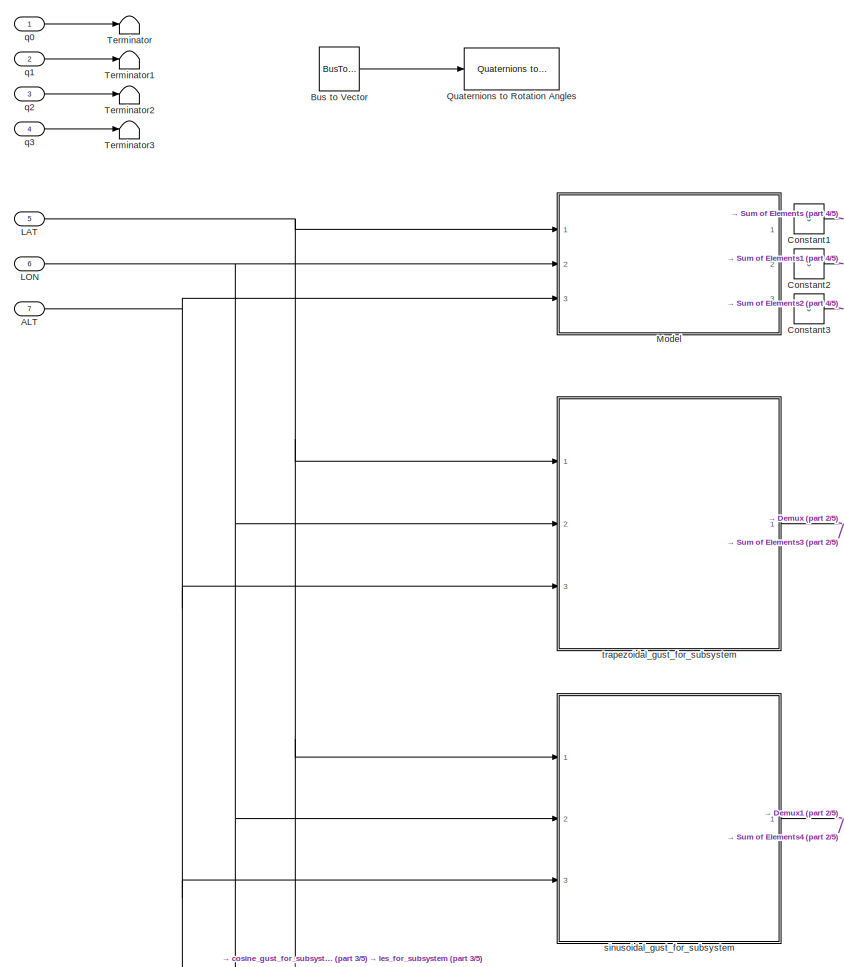
[diagram: root canvas - part 1/5, top left region]
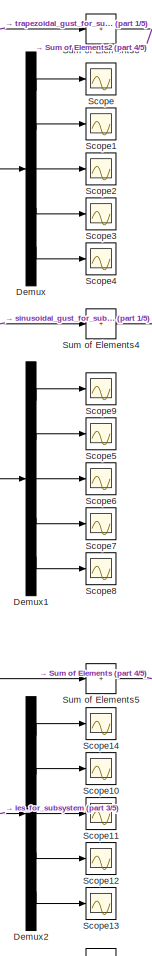
[diagram: root canvas - part 2/5, top center region]
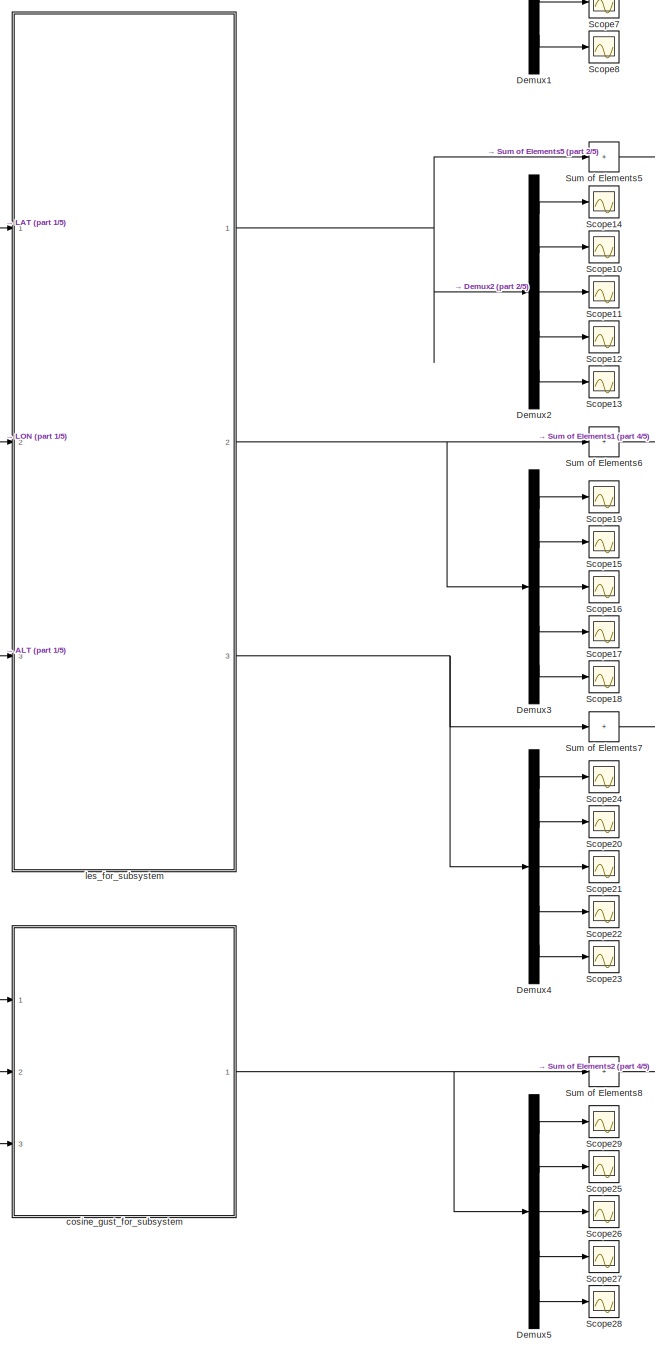
[diagram: root canvas - part 3/5, central region]
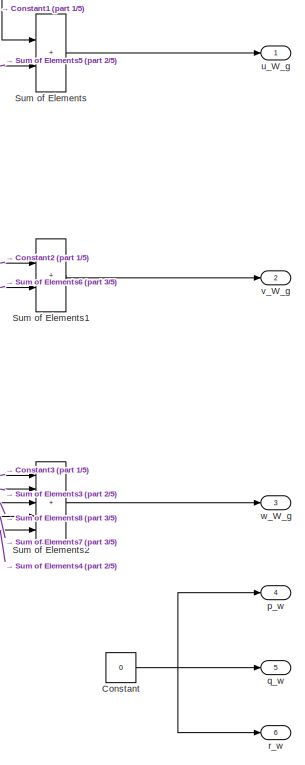
[diagram: root canvas - part 4/5, bottom right region]
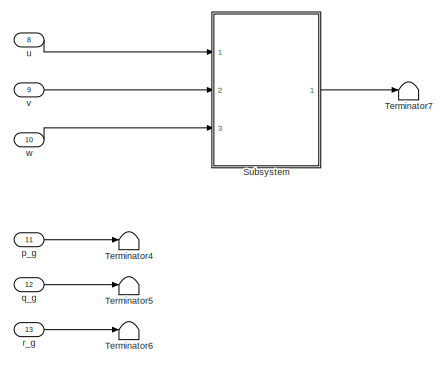
[diagram: root canvas - part 5/5, bottom left region]
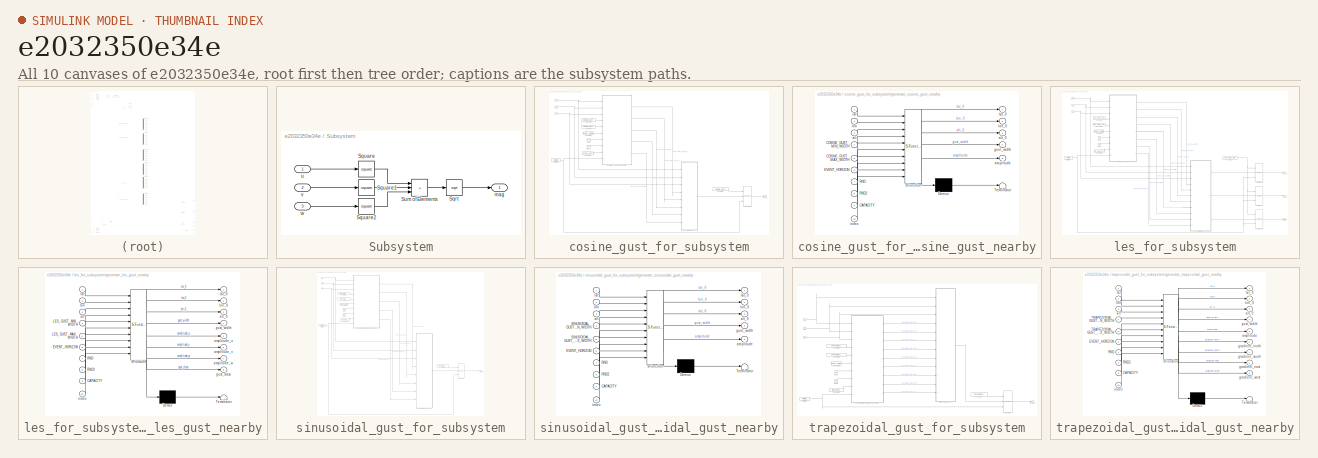
[diagram: thumbnail index - all 10 canvases of the model, root first then tree order]
MODEL slx_e2032350e34e
KIND model
BLOCK [Inport] ALT
  OutDataTypeStr = double
  Port = 7
BLOCK [BusToVector] Bus to Vector
  Commented = on
BLOCK [Constant] Constant
  Value = 0
BLOCK [Constant] Constant1
  Value = 0
BLOCK [Constant] Constant2
  Value = 0
BLOCK [Constant] Constant3
  Value = 0
BLOCK [Demux] Demux
  Outputs = 5
  Ports = [1, 5]
BLOCK [Demux] Demux1
  Outputs = 5
  Ports = [1, 5]
BLOCK [Demux] Demux2
  Outputs = 5
  Ports = [1, 5]
BLOCK [Demux] Demux3
  Outputs = 5
  Ports = [1, 5]
BLOCK [Demux] Demux4
  Outputs = 5
  Ports = [1, 5]
BLOCK [Demux] Demux5
  Outputs = 5
  Ports = [1, 5]
BLOCK [Inport] LAT
  OutDataTypeStr = double
  Port = 5
BLOCK [Inport] LON
  OutDataTypeStr = double
  Port = 6
BLOCK [ModelReference] Model
  Commented = on
  ModelNameDialog = model_static_wind_field.slx
  ModelReferenceVersion = 1.34
  Ports = [3, 3]
BLOCK [Reference] Quaternions to Rotation Angles  REF=sharedtransform/Quaternions to Rotation Angles
  AttributesFormatString = Rotation Order: %<rotationOrder>
  Commented = on
  Ports = [1, 1]
  SourceBlock = sharedtransform/Quaternions to Rotation Angles
  SourceProductBaseCode = AE,PW,MT,UV,VE,VP
  SourceType = Quat2Ang
BLOCK [Scope] Scope
  Floating = off
  NumInputPorts = 1
  Ports = [1]
  ScopeSpecificationString = Simulink.scopes.TimeScopeBlockCfg('CurrentConfiguration', extmgr.ConfigurationSet(extmgr.Configuration('Core','General UI',true),extmgr.Configuration('Core','Source UI',true),extmgr.Configuration('Sources','WiredSimulink',true),extmgr.Configuration('Visuals','Time Domain',true,'SerializedDisplays',{struct('MinYLimReal','-1.00000','MaxYLimReal','1.00000','YLabelReal','','MinYLimMag','0.00000','MaxY...<+1327ch>
BLOCK [Scope] Scope1
  Floating = off
  NumInputPorts = 1
  Ports = [1]
  ScopeSpecificationString = Simulink.scopes.TimeScopeBlockCfg('CurrentConfiguration', extmgr.ConfigurationSet(extmgr.Configuration('Core','General UI',true),extmgr.Configuration('Core','Source UI',true),extmgr.Configuration('Sources','WiredSimulink',true,'DataLoggingVariableName','ScopeData1'),extmgr.Configuration('Visuals','Time Domain',true,'SerializedDisplays',{struct('MinYLimReal','-1.00000','MaxYLimReal','1.00000','YLab...<+1366ch>
BLOCK [Scope] Scope10
  Floating = off
  NumInputPorts = 1
  Ports = [1]
  ScopeSpecificationString = Simulink.scopes.TimeScopeBlockCfg('CurrentConfiguration', extmgr.ConfigurationSet(extmgr.Configuration('Core','General UI',true),extmgr.Configuration('Core','Source UI',true),extmgr.Configuration('Sources','WiredSimulink',true,'DataLoggingVariableName','ScopeData1'),extmgr.Configuration('Visuals','Time Domain',true),extmgr.Configuration('Tools','Plot Navigation',true),extmgr.Configuration('Tools',...<+40ch>
BLOCK [Scope] Scope11
  Floating = off
  NumInputPorts = 1
  Ports = [1]
  ScopeSpecificationString = Simulink.scopes.TimeScopeBlockCfg('CurrentConfiguration', extmgr.ConfigurationSet(extmgr.Configuration('Core','General UI',true),extmgr.Configuration('Core','Source UI',true),extmgr.Configuration('Sources','WiredSimulink',true,'DataLoggingVariableName','ScopeData2'),extmgr.Configuration('Visuals','Time Domain',true),extmgr.Configuration('Tools','Plot Navigation',true),extmgr.Configuration('Tools',...<+40ch>
BLOCK [Scope] Scope12
  Floating = off
  NumInputPorts = 1
  Ports = [1]
  ScopeSpecificationString = Simulink.scopes.TimeScopeBlockCfg('CurrentConfiguration', extmgr.ConfigurationSet(extmgr.Configuration('Core','General UI',true),extmgr.Configuration('Core','Source UI',true),extmgr.Configuration('Sources','WiredSimulink',true,'DataLoggingVariableName','ScopeData3'),extmgr.Configuration('Visuals','Time Domain',true),extmgr.Configuration('Tools','Plot Navigation',true),extmgr.Configuration('Tools',...<+40ch>
BLOCK [Scope] Scope13
  Floating = off
  NumInputPorts = 1
  Ports = [1]
  ScopeSpecificationString = Simulink.scopes.TimeScopeBlockCfg('CurrentConfiguration', extmgr.ConfigurationSet(extmgr.Configuration('Core','General UI',true),extmgr.Configuration('Core','Source UI',true),extmgr.Configuration('Sources','WiredSimulink',true,'DataLoggingVariableName','ScopeData4'),extmgr.Configuration('Visuals','Time Domain',true),extmgr.Configuration('Tools','Plot Navigation',true),extmgr.Configuration('Tools',...<+40ch>
BLOCK [Scope] Scope14
  Floating = off
  NumInputPorts = 1
  Ports = [1]
  ScopeSpecificationString = Simulink.scopes.TimeScopeBlockCfg('CurrentConfiguration', extmgr.ConfigurationSet(extmgr.Configuration('Core','General UI',true),extmgr.Configuration('Core','Source UI',true),extmgr.Configuration('Sources','WiredSimulink',true,'DataLoggingVariableName','ScopeData5'),extmgr.Configuration('Visuals','Time Domain',true),extmgr.Configuration('Tools','Plot Navigation',true),extmgr.Configuration('Tools',...<+40ch>
BLOCK [Scope] Scope15
  Floating = off
  NumInputPorts = 1
  Ports = [1]
  ScopeSpecificationString = Simulink.scopes.TimeScopeBlockCfg('CurrentConfiguration', extmgr.ConfigurationSet(extmgr.Configuration('Core','General UI',true),extmgr.Configuration('Core','Source UI',true),extmgr.Configuration('Sources','WiredSimulink',true,'DataLoggingVariableName','ScopeData6'),extmgr.Configuration('Visuals','Time Domain',true),extmgr.Configuration('Tools','Plot Navigation',true),extmgr.Configuration('Tools',...<+40ch>
BLOCK [Scope] Scope16
  Floating = off
  NumInputPorts = 1
  Ports = [1]
  ScopeSpecificationString = Simulink.scopes.TimeScopeBlockCfg('CurrentConfiguration', extmgr.ConfigurationSet(extmgr.Configuration('Core','General UI',true),extmgr.Configuration('Core','Source UI',true),extmgr.Configuration('Sources','WiredSimulink',true,'DataLoggingVariableName','ScopeData7'),extmgr.Configuration('Visuals','Time Domain',true),extmgr.Configuration('Tools','Plot Navigation',true),extmgr.Configuration('Tools',...<+40ch>
BLOCK [Scope] Scope17
  Floating = off
  NumInputPorts = 1
  Ports = [1]
  ScopeSpecificationString = Simulink.scopes.TimeScopeBlockCfg('CurrentConfiguration', extmgr.ConfigurationSet(extmgr.Configuration('Core','General UI',true),extmgr.Configuration('Core','Source UI',true),extmgr.Configuration('Sources','WiredSimulink',true,'DataLoggingVariableName','ScopeData8'),extmgr.Configuration('Visuals','Time Domain',true),extmgr.Configuration('Tools','Plot Navigation',true),extmgr.Configuration('Tools',...<+40ch>
BLOCK [Scope] Scope18
  Floating = off
  NumInputPorts = 1
  Ports = [1]
  ScopeSpecificationString = Simulink.scopes.TimeScopeBlockCfg('CurrentConfiguration', extmgr.ConfigurationSet(extmgr.Configuration('Core','General UI',true),extmgr.Configuration('Core','Source UI',true),extmgr.Configuration('Sources','WiredSimulink',true,'DataLoggingVariableName','ScopeData9'),extmgr.Configuration('Visuals','Time Domain',true),extmgr.Configuration('Tools','Plot Navigation',true),extmgr.Configuration('Tools',...<+40ch>
BLOCK [Scope] Scope19
  Floating = off
  NumInputPorts = 1
  Ports = [1]
  ScopeSpecificationString = Simulink.scopes.TimeScopeBlockCfg('CurrentConfiguration', extmgr.ConfigurationSet(extmgr.Configuration('Core','General UI',true),extmgr.Configuration('Core','Source UI',true),extmgr.Configuration('Sources','WiredSimulink',true,'DataLoggingVariableName','ScopeData10'),extmgr.Configuration('Visuals','Time Domain',true),extmgr.Configuration('Tools','Plot Navigation',true),extmgr.Configuration('Tools'...<+41ch>
BLOCK [Scope] Scope2
  Floating = off
  NumInputPorts = 1
  Ports = [1]
  ScopeSpecificationString = Simulink.scopes.TimeScopeBlockCfg('CurrentConfiguration', extmgr.ConfigurationSet(extmgr.Configuration('Core','General UI',true),extmgr.Configuration('Core','Source UI',true),extmgr.Configuration('Sources','WiredSimulink',true,'DataLoggingVariableName','ScopeData2'),extmgr.Configuration('Visuals','Time Domain',true,'SerializedDisplays',{struct('MinYLimReal','-1.00000','MaxYLimReal','1.00000','YLab...<+1366ch>
BLOCK [Scope] Scope20
  Floating = off
  NumInputPorts = 1
  Ports = [1]
  ScopeSpecificationString = Simulink.scopes.TimeScopeBlockCfg('CurrentConfiguration', extmgr.ConfigurationSet(extmgr.Configuration('Core','General UI',true),extmgr.Configuration('Core','Source UI',true),extmgr.Configuration('Sources','WiredSimulink',true,'DataLoggingVariableName','ScopeData11'),extmgr.Configuration('Visuals','Time Domain',true),extmgr.Configuration('Tools','Plot Navigation',true),extmgr.Configuration('Tools'...<+41ch>
BLOCK [Scope] Scope21
  Floating = off
  NumInputPorts = 1
  Ports = [1]
  ScopeSpecificationString = Simulink.scopes.TimeScopeBlockCfg('CurrentConfiguration', extmgr.ConfigurationSet(extmgr.Configuration('Core','General UI',true),extmgr.Configuration('Core','Source UI',true),extmgr.Configuration('Sources','WiredSimulink',true,'DataLoggingVariableName','ScopeData12'),extmgr.Configuration('Visuals','Time Domain',true),extmgr.Configuration('Tools','Plot Navigation',true),extmgr.Configuration('Tools'...<+41ch>
BLOCK [Scope] Scope22
  Floating = off
  NumInputPorts = 1
  Ports = [1]
  ScopeSpecificationString = Simulink.scopes.TimeScopeBlockCfg('CurrentConfiguration', extmgr.ConfigurationSet(extmgr.Configuration('Core','General UI',true),extmgr.Configuration('Core','Source UI',true),extmgr.Configuration('Sources','WiredSimulink',true,'DataLoggingVariableName','ScopeData13'),extmgr.Configuration('Visuals','Time Domain',true),extmgr.Configuration('Tools','Plot Navigation',true),extmgr.Configuration('Tools'...<+41ch>
BLOCK [Scope] Scope23
  Floating = off
  NumInputPorts = 1
  Ports = [1]
  ScopeSpecificationString = Simulink.scopes.TimeScopeBlockCfg('CurrentConfiguration', extmgr.ConfigurationSet(extmgr.Configuration('Core','General UI',true),extmgr.Configuration('Core','Source UI',true),extmgr.Configuration('Sources','WiredSimulink',true,'DataLoggingVariableName','ScopeData14'),extmgr.Configuration('Visuals','Time Domain',true),extmgr.Configuration('Tools','Plot Navigation',true),extmgr.Configuration('Tools'...<+41ch>
BLOCK [Scope] Scope24
  Floating = off
  NumInputPorts = 1
  Ports = [1]
  ScopeSpecificationString = Simulink.scopes.TimeScopeBlockCfg('CurrentConfiguration', extmgr.ConfigurationSet(extmgr.Configuration('Core','General UI',true),extmgr.Configuration('Core','Source UI',true),extmgr.Configuration('Sources','WiredSimulink',true,'DataLoggingVariableName','ScopeData15'),extmgr.Configuration('Visuals','Time Domain',true),extmgr.Configuration('Tools','Plot Navigation',true),extmgr.Configuration('Tools'...<+41ch>
BLOCK [Scope] Scope25
  Floating = off
  NumInputPorts = 1
  Ports = [1]
  ScopeSpecificationString = Simulink.scopes.TimeScopeBlockCfg('CurrentConfiguration', extmgr.ConfigurationSet(extmgr.Configuration('Core','General UI',true),extmgr.Configuration('Core','Source UI',true),extmgr.Configuration('Sources','WiredSimulink',true,'DataLoggingVariableName','ScopeData16'),extmgr.Configuration('Visuals','Time Domain',true),extmgr.Configuration('Tools','Plot Navigation',true),extmgr.Configuration('Tools'...<+41ch>
BLOCK [Scope] Scope26
  Floating = off
  NumInputPorts = 1
  Ports = [1]
  ScopeSpecificationString = Simulink.scopes.TimeScopeBlockCfg('CurrentConfiguration', extmgr.ConfigurationSet(extmgr.Configuration('Core','General UI',true),extmgr.Configuration('Core','Source UI',true),extmgr.Configuration('Sources','WiredSimulink',true,'DataLoggingVariableName','ScopeData17'),extmgr.Configuration('Visuals','Time Domain',true),extmgr.Configuration('Tools','Plot Navigation',true),extmgr.Configuration('Tools'...<+41ch>
BLOCK [Scope] Scope27
  Floating = off
  NumInputPorts = 1
  Ports = [1]
  ScopeSpecificationString = Simulink.scopes.TimeScopeBlockCfg('CurrentConfiguration', extmgr.ConfigurationSet(extmgr.Configuration('Core','General UI',true),extmgr.Configuration('Core','Source UI',true),extmgr.Configuration('Sources','WiredSimulink',true,'DataLoggingVariableName','ScopeData18'),extmgr.Configuration('Visuals','Time Domain',true),extmgr.Configuration('Tools','Plot Navigation',true),extmgr.Configuration('Tools'...<+41ch>
BLOCK [Scope] Scope28
  Floating = off
  NumInputPorts = 1
  Ports = [1]
  ScopeSpecificationString = Simulink.scopes.TimeScopeBlockCfg('CurrentConfiguration', extmgr.ConfigurationSet(extmgr.Configuration('Core','General UI',true),extmgr.Configuration('Core','Source UI',true),extmgr.Configuration('Sources','WiredSimulink',true,'DataLoggingVariableName','ScopeData19'),extmgr.Configuration('Visuals','Time Domain',true),extmgr.Configuration('Tools','Plot Navigation',true),extmgr.Configuration('Tools'...<+41ch>
BLOCK [Scope] Scope29
  Floating = off
  NumInputPorts = 1
  Ports = [1]
  ScopeSpecificationString = Simulink.scopes.TimeScopeBlockCfg('CurrentConfiguration', extmgr.ConfigurationSet(extmgr.Configuration('Core','General UI',true),extmgr.Configuration('Core','Source UI',true),extmgr.Configuration('Sources','WiredSimulink',true,'DataLoggingVariableName','ScopeData20'),extmgr.Configuration('Visuals','Time Domain',true),extmgr.Configuration('Tools','Plot Navigation',true),extmgr.Configuration('Tools'...<+41ch>
BLOCK [Scope] Scope3
  Floating = off
  NumInputPorts = 1
  Ports = [1]
  ScopeSpecificationString = Simulink.scopes.TimeScopeBlockCfg('CurrentConfiguration', extmgr.ConfigurationSet(extmgr.Configuration('Core','General UI',true),extmgr.Configuration('Core','Source UI',true),extmgr.Configuration('Sources','WiredSimulink',true,'DataLoggingVariableName','ScopeData3'),extmgr.Configuration('Visuals','Time Domain',true,'SerializedDisplays',{struct('MinYLimReal','-1.00000','MaxYLimReal','1.00000','YLab...<+1366ch>
BLOCK [Scope] Scope4
  Floating = off
  NumInputPorts = 1
  Ports = [1]
  ScopeSpecificationString = Simulink.scopes.TimeScopeBlockCfg('CurrentConfiguration', extmgr.ConfigurationSet(extmgr.Configuration('Core','General UI',true),extmgr.Configuration('Core','Source UI',true),extmgr.Configuration('Sources','WiredSimulink',true,'DataLoggingVariableName','ScopeData4'),extmgr.Configuration('Visuals','Time Domain',true,'SerializedDisplays',{struct('MinYLimReal','-1.00000','MaxYLimReal','1.00000','YLab...<+1366ch>
BLOCK [Scope] Scope5
  Floating = off
  NumInputPorts = 1
  Ports = [1]
  ScopeSpecificationString = Simulink.scopes.TimeScopeBlockCfg('CurrentConfiguration', extmgr.ConfigurationSet(extmgr.Configuration('Core','General UI',true),extmgr.Configuration('Core','Source UI',true),extmgr.Configuration('Sources','WiredSimulink',true,'DataLoggingVariableName','ScopeData1'),extmgr.Configuration('Visuals','Time Domain',true),extmgr.Configuration('Tools','Plot Navigation',true),extmgr.Configuration('Tools',...<+40ch>
BLOCK [Scope] Scope6
  Floating = off
  NumInputPorts = 1
  Ports = [1]
  ScopeSpecificationString = Simulink.scopes.TimeScopeBlockCfg('CurrentConfiguration', extmgr.ConfigurationSet(extmgr.Configuration('Core','General UI',true),extmgr.Configuration('Core','Source UI',true),extmgr.Configuration('Sources','WiredSimulink',true,'DataLoggingVariableName','ScopeData2'),extmgr.Configuration('Visuals','Time Domain',true),extmgr.Configuration('Tools','Plot Navigation',true),extmgr.Configuration('Tools',...<+40ch>
BLOCK [Scope] Scope7
  Floating = off
  NumInputPorts = 1
  Ports = [1]
  ScopeSpecificationString = Simulink.scopes.TimeScopeBlockCfg('CurrentConfiguration', extmgr.ConfigurationSet(extmgr.Configuration('Core','General UI',true),extmgr.Configuration('Core','Source UI',true),extmgr.Configuration('Sources','WiredSimulink',true,'DataLoggingVariableName','ScopeData3'),extmgr.Configuration('Visuals','Time Domain',true),extmgr.Configuration('Tools','Plot Navigation',true),extmgr.Configuration('Tools',...<+40ch>
BLOCK [Scope] Scope8
  Floating = off
  NumInputPorts = 1
  Ports = [1]
  ScopeSpecificationString = Simulink.scopes.TimeScopeBlockCfg('CurrentConfiguration', extmgr.ConfigurationSet(extmgr.Configuration('Core','General UI',true),extmgr.Configuration('Core','Source UI',true),extmgr.Configuration('Sources','WiredSimulink',true,'DataLoggingVariableName','ScopeData4'),extmgr.Configuration('Visuals','Time Domain',true),extmgr.Configuration('Tools','Plot Navigation',true),extmgr.Configuration('Tools',...<+40ch>
BLOCK [Scope] Scope9
  Floating = off
  NumInputPorts = 1
  Ports = [1]
  ScopeSpecificationString = Simulink.scopes.TimeScopeBlockCfg('CurrentConfiguration', extmgr.ConfigurationSet(extmgr.Configuration('Core','General UI',true),extmgr.Configuration('Core','Source UI',true),extmgr.Configuration('Sources','WiredSimulink',true,'DataLoggingVariableName','ScopeData5'),extmgr.Configuration('Visuals','Time Domain',true),extmgr.Configuration('Tools','Plot Navigation',true),extmgr.Configuration('Tools',...<+40ch>
BLOCK [SubSystem] Subsystem
  Ports = [3, 1]
  RequestExecContextInheritance = off
BLOCK [Sqrt] Subsystem/Sqrt
BLOCK [Math] Subsystem/Square
  Operator = square
  Ports = [1, 1]
BLOCK [Math] Subsystem/Square1
  Operator = square
  Ports = [1, 1]
BLOCK [Math] Subsystem/Square2
  Operator = square
  Ports = [1, 1]
BLOCK [Sum] Subsystem/Sum of Elements
  IconShape = rectangular
  Inputs = +++
  Ports = [3, 1]
BLOCK [Outport] Subsystem/mag
BLOCK [Inport] Subsystem/u
  OutDataTypeStr = double
BLOCK [Inport] Subsystem/v
  OutDataTypeStr = double
  Port = 2
BLOCK [Inport] Subsystem/w
  OutDataTypeStr = double
  Port = 3
BLOCK [Sum] Sum of Elements
  IconShape = rectangular
  Ports = [2, 1]
BLOCK [Sum] Sum of Elements1
  IconShape = rectangular
  Ports = [2, 1]
BLOCK [Sum] Sum of Elements2
  IconShape = rectangular
  Inputs = +++++
  Ports = [5, 1]
BLOCK [Sum] Sum of Elements3
  IconShape = rectangular
  Inputs = +
  Ports = [1, 1]
BLOCK [Sum] Sum of Elements4
  IconShape = rectangular
  Inputs = +
  Ports = [1, 1]
BLOCK [Sum] Sum of Elements5
  IconShape = rectangular
  Inputs = +
  Ports = [1, 1]
BLOCK [Sum] Sum of Elements6
  IconShape = rectangular
  Inputs = +
  Ports = [1, 1]
BLOCK [Sum] Sum of Elements7
  IconShape = rectangular
  Inputs = +
  Ports = [1, 1]
BLOCK [Sum] Sum of Elements8
  IconShape = rectangular
  Inputs = +
  Ports = [1, 1]
BLOCK [Terminator] Terminator
BLOCK [Terminator] Terminator1
BLOCK [Terminator] Terminator2
BLOCK [Terminator] Terminator3
BLOCK [Terminator] Terminator4
BLOCK [Terminator] Terminator5
BLOCK [Terminator] Terminator6
BLOCK [Terminator] Terminator7
BLOCK [SubSystem] cosine_gust_for_subsystem
  Ports = [3, 1]
  RequestExecContextInheritance = off
  TreatAsAtomicUnit = on
BLOCK [Inport] cosine_gust_for_subsystem/ALT
  OutDataTypeStr = double
  Port = 3
BLOCK [Assignment] cosine_gust_for_subsystem/Assignment2
  DiagnosticForDimensions = Warning
  IndexOptions = Index vector (port)
  Indices = 1
  OutputSizes = 1
  Ports = [3, 1]
BLOCK [Constant] cosine_gust_for_subsystem/Constant
  Value = COSINE_GUST_EMPTY
BLOCK [Constant] cosine_gust_for_subsystem/Constant1
  Value = cosine_gust_capacity
BLOCK [Constant] cosine_gust_for_subsystem/Constant2
  Value = COSINE_GUST_MIN_WIDTH
BLOCK [Constant] cosine_gust_for_subsystem/Constant3
  Value = EVENT_HORIZON
BLOCK [Constant] cosine_gust_for_subsystem/Constant4
  Value = COSINE_GUST_MAX_WIDTH
BLOCK [ForIterator] cosine_gust_for_subsystem/For Iterator
  IterationLimit = cosine_gust_capacity
  IterationVariableDataType = double
  Ports = [0, 1]
BLOCK [Inport] cosine_gust_for_subsystem/LAT
  OutDataTypeStr = double
BLOCK [Inport] cosine_gust_for_subsystem/LON
  OutDataTypeStr = double
  Port = 2
BLOCK [ModelReference] cosine_gust_for_subsystem/Model
  ModelNameDialog = model_cosine_gust.slx
  ModelReferenceVersion = 1.64
  Ports = [8, 1]
BLOCK [UniformRandomNumber] cosine_gust_for_subsystem/RND
  Minimum = 0
  SampleTime = [-1, 0]
  Seed = SEED+7
BLOCK [UniformRandomNumber] cosine_gust_for_subsystem/RND2
  Minimum = 0
  SampleTime = [-1, 0]
  Seed = SEED+8
BLOCK [SubSystem] cosine_gust_for_subsystem/generate_cosine_gust_nearby
  ErrorFcn = Stateflow.Translate.translate
  PermitHierarchicalResolution = ExplicitOnly
  Ports = [10, 5]
  RequestExecContextInheritance = off
  SFBlockType = MATLAB Function
  TreatAsAtomicUnit = on
BLOCK [Demux] cosine_gust_for_subsystem/generate_cosine_gust_nearby/ Demux 
  Outputs = 1
  Ports = [1, 1]
BLOCK [S-Function] cosine_gust_for_subsystem/generate_cosine_gust_nearby/ SFunction 
  EnableBusSupport = on
  FunctionName = sf_sfun
  PortCounts = [10 6]
  Ports = [10, 6]
  SFcnIsStateOwnerBlock = off
  SFunctionDeploymentMode = off
  Tag = Stateflow S-Function 6
BLOCK [Terminator] cosine_gust_for_subsystem/generate_cosine_gust_nearby/ Terminator 
BLOCK [Inport] cosine_gust_for_subsystem/generate_cosine_gust_nearby/CAPACITY
  Port = 9
BLOCK [Inport] cosine_gust_for_subsystem/generate_cosine_gust_nearby/COSINE_GUST_MAX_WIDTH
  Port = 5
BLOCK [Inport] cosine_gust_for_subsystem/generate_cosine_gust_nearby/COSINE_GUST_MIN_WIDTH
  Port = 4
BLOCK [Inport] cosine_gust_for_subsystem/generate_cosine_gust_nearby/EVENT_HORIZON
  Port = 6
BLOCK [Inport] cosine_gust_for_subsystem/generate_cosine_gust_nearby/RND
  Port = 7
BLOCK [Inport] cosine_gust_for_subsystem/generate_cosine_gust_nearby/RND2
  Port = 8
BLOCK [Inport] cosine_gust_for_subsystem/generate_cosine_gust_nearby/alt
  Port = 3
BLOCK [Outport] cosine_gust_for_subsystem/generate_cosine_gust_nearby/alt_0
  Port = 3
BLOCK [Outport] cosine_gust_for_subsystem/generate_cosine_gust_nearby/amplitude
  Port = 5
BLOCK [Outport] cosine_gust_for_subsystem/generate_cosine_gust_nearby/gust_width
  Port = 4
BLOCK [Inport] cosine_gust_for_subsystem/generate_cosine_gust_nearby/index
  Port = 10
BLOCK [Inport] cosine_gust_for_subsystem/generate_cosine_gust_nearby/lat
BLOCK [Outport] cosine_gust_for_subsystem/generate_cosine_gust_nearby/lat_0
BLOCK [Inport] cosine_gust_for_subsystem/generate_cosine_gust_nearby/lon
  Port = 2
BLOCK [Outport] cosine_gust_for_subsystem/generate_cosine_gust_nearby/lon_0
  Port = 2
BLOCK [Outport] cosine_gust_for_subsystem/w_W_g
  OutDataTypeStr = double
BLOCK [SubSystem] les_for_subsystem
  Ports = [3, 3]
  RequestExecContextInheritance = off
  TreatAsAtomicUnit = on
BLOCK [Inport] les_for_subsystem/ALT
  OutDataTypeStr = double
  Port = 3
BLOCK [Assignment] les_for_subsystem/Assignment
  DiagnosticForDimensions = Warning
  IndexOptions = Index vector (port)
  Indices = 1
  OutputSizes = 1
  Ports = [3, 1]
BLOCK [Assignment] les_for_subsystem/Assignment1
  DiagnosticForDimensions = Warning
  IndexOptions = Index vector (port)
  Indices = 1
  OutputSizes = 1
  Ports = [3, 1]
BLOCK [Assignment] les_for_subsystem/Assignment2
  DiagnosticForDimensions = Warning
  IndexOptions = Index vector (port)
  Indices = 1
  OutputSizes = 1
  Ports = [3, 1]
BLOCK [Constant] les_for_subsystem/Constant
  Value = LES_GUST_EMPTY
BLOCK [Constant] les_for_subsystem/Constant1
  Value = les_gust_capacity
BLOCK [Constant] les_for_subsystem/Constant2
  Value = LES_GUST_MIN_WIDTH
BLOCK [Constant] les_for_subsystem/Constant3
  Value = EVENT_HORIZON
BLOCK [Constant] les_for_subsystem/Constant4
  Value = LES_GUST_MAX_WIDTH
BLOCK [ForIterator] les_for_subsystem/For Iterator
  IterationLimit = knigge_gust_capacity
  IterationVariableDataType = double
  Ports = [0, 1]
BLOCK [Inport] les_for_subsystem/LAT
  OutDataTypeStr = double
BLOCK [Inport] les_for_subsystem/LON
  OutDataTypeStr = double
  Port = 2
BLOCK [ModelReference] les_for_subsystem/Model
  ModelNameDialog = model_knigge.slx
  ModelReferenceVersion = 1.52
  Ports = [11, 3]
BLOCK [UniformRandomNumber] les_for_subsystem/RND
  Minimum = 0
  SampleTime = [-1, 0]
  Seed = SEED+5
BLOCK [UniformRandomNumber] les_for_subsystem/RND2
  Minimum = 0
  SampleTime = [-1, 0]
  Seed = SEED+6
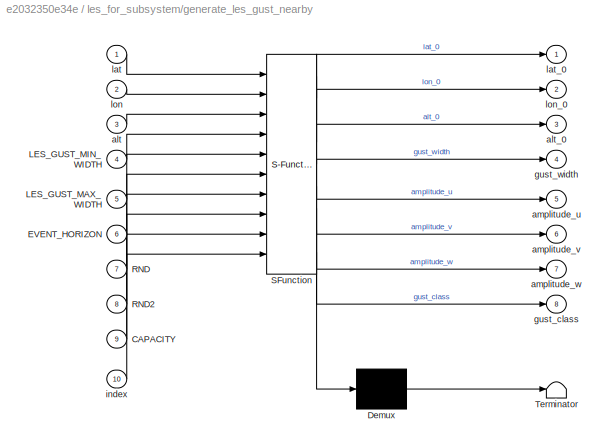
BLOCK [SubSystem] les_for_subsystem/generate_les_gust_nearby
  ErrorFcn = Stateflow.Translate.translate
  PermitHierarchicalResolution = ExplicitOnly
  Ports = [10, 8]
  RequestExecContextInheritance = off
  SFBlockType = MATLAB Function
  TreatAsAtomicUnit = on
BLOCK [Demux] les_for_subsystem/generate_les_gust_nearby/ Demux 
  Outputs = 1
  Ports = [1, 1]
BLOCK [S-Function] les_for_subsystem/generate_les_gust_nearby/ SFunction 
  EnableBusSupport = on
  FunctionName = sf_sfun
  PortCounts = [10 9]
  Ports = [10, 9]
  SFcnIsStateOwnerBlock = off
  SFunctionDeploymentMode = off
  Tag = Stateflow S-Function 5
BLOCK [Terminator] les_for_subsystem/generate_les_gust_nearby/ Terminator 
BLOCK [Inport] les_for_subsystem/generate_les_gust_nearby/CAPACITY
  Port = 9
BLOCK [Inport] les_for_subsystem/generate_les_gust_nearby/EVENT_HORIZON
  Port = 6
BLOCK [Inport] les_for_subsystem/generate_les_gust_nearby/LES_GUST_MAX_WIDTH
  Port = 5
BLOCK [Inport] les_for_subsystem/generate_les_gust_nearby/LES_GUST_MIN_WIDTH
  Port = 4
BLOCK [Inport] les_for_subsystem/generate_les_gust_nearby/RND
  Port = 7
BLOCK [Inport] les_for_subsystem/generate_les_gust_nearby/RND2
  Port = 8
BLOCK [Inport] les_for_subsystem/generate_les_gust_nearby/alt
  Port = 3
BLOCK [Outport] les_for_subsystem/generate_les_gust_nearby/alt_0
  Port = 3
BLOCK [Outport] les_for_subsystem/generate_les_gust_nearby/amplitude_u
  Port = 5
BLOCK [Outport] les_for_subsystem/generate_les_gust_nearby/amplitude_v
  Port = 6
BLOCK [Outport] les_for_subsystem/generate_les_gust_nearby/amplitude_w
  Port = 7
BLOCK [Outport] les_for_subsystem/generate_les_gust_nearby/gust_class
  Port = 8
BLOCK [Outport] les_for_subsystem/generate_les_gust_nearby/gust_width
  Port = 4
BLOCK [Inport] les_for_subsystem/generate_les_gust_nearby/index
  Port = 10
BLOCK [Inport] les_for_subsystem/generate_les_gust_nearby/lat
BLOCK [Outport] les_for_subsystem/generate_les_gust_nearby/lat_0
BLOCK [Inport] les_for_subsystem/generate_les_gust_nearby/lon
  Port = 2
BLOCK [Outport] les_for_subsystem/generate_les_gust_nearby/lon_0
  Port = 2
BLOCK [Outport] les_for_subsystem/u_W_g
  OutDataTypeStr = double
BLOCK [Outport] les_for_subsystem/v_W_g
  OutDataTypeStr = double
  Port = 2
BLOCK [Outport] les_for_subsystem/w_W_g
  OutDataTypeStr = double
  Port = 3
BLOCK [Inport] p_g
  OutDataTypeStr = double
  Port = 11
BLOCK [Outport] p_w
  OutDataTypeStr = double
  Port = 4
  SignalName = p_w
BLOCK [Inport] q0
  OutDataTypeStr = double
BLOCK [Inport] q1
  OutDataTypeStr = double
  Port = 2
BLOCK [Inport] q2
  OutDataTypeStr = double
  Port = 3
BLOCK [Inport] q3
  OutDataTypeStr = double
  Port = 4
BLOCK [Inport] q_g
  OutDataTypeStr = double
  Port = 12
BLOCK [Outport] q_w
  OutDataTypeStr = double
  Port = 5
  SignalName = q_w
BLOCK [Inport] r_g
  OutDataTypeStr = double
  Port = 13
BLOCK [Outport] r_w
  OutDataTypeStr = double
  Port = 6
  SignalName = r_w
BLOCK [SubSystem] sinusoidal_gust_for_subsystem
  Ports = [3, 1]
  RequestExecContextInheritance = off
  TreatAsAtomicUnit = on
BLOCK [Inport] sinusoidal_gust_for_subsystem/ALT
  OutDataTypeStr = double
  Port = 3
BLOCK [Assignment] sinusoidal_gust_for_subsystem/Assignment
  DiagnosticForDimensions = Warning
  IndexOptions = Index vector (port)
  Indices = 1
  OutputSizes = 1
  Ports = [3, 1]
BLOCK [Constant] sinusoidal_gust_for_subsystem/Constant
  Value = SINUSOIDAL_GUST_EMPTY
BLOCK [Constant] sinusoidal_gust_for_subsystem/Constant1
  Value = sinusoidal_gust_capacity
BLOCK [Constant] sinusoidal_gust_for_subsystem/Constant2
  Value = SINUSOIDAL_GUST_MIN_WIDTH
BLOCK [Constant] sinusoidal_gust_for_subsystem/Constant3
  Value = EVENT_HORIZON
BLOCK [Constant] sinusoidal_gust_for_subsystem/Constant4
  Value = SINUSOIDAL_GUST_MAX_WIDTH
BLOCK [ForIterator] sinusoidal_gust_for_subsystem/For Iterator
  IterationLimit = sinusoidal_gust_capacity
  IterationVariableDataType = double
  Ports = [0, 1]
BLOCK [Inport] sinusoidal_gust_for_subsystem/LAT
  OutDataTypeStr = double
BLOCK [Inport] sinusoidal_gust_for_subsystem/LON
  OutDataTypeStr = double
  Port = 2
BLOCK [UniformRandomNumber] sinusoidal_gust_for_subsystem/RND
  Minimum = 0
  SampleTime = [-1, 0]
  Seed = SEED+3
BLOCK [UniformRandomNumber] sinusoidal_gust_for_subsystem/RND2
  Minimum = 0
  SampleTime = [-1, 0]
  Seed = SEED+4
BLOCK [SubSystem] sinusoidal_gust_for_subsystem/generate_sinusoidal_gust_nearby
  ErrorFcn = Stateflow.Translate.translate
  PermitHierarchicalResolution = ExplicitOnly
  Ports = [10, 5]
  RequestExecContextInheritance = off
  SFBlockType = MATLAB Function
  TreatAsAtomicUnit = on
BLOCK [Demux] sinusoidal_gust_for_subsystem/generate_sinusoidal_gust_nearby/ Demux 
  Outputs = 1
  Ports = [1, 1]
BLOCK [S-Function] sinusoidal_gust_for_subsystem/generate_sinusoidal_gust_nearby/ SFunction 
  EnableBusSupport = on
  FunctionName = sf_sfun
  PortCounts = [10 6]
  Ports = [10, 6]
  SFcnIsStateOwnerBlock = off
  SFunctionDeploymentMode = off
  Tag = Stateflow S-Function 4
BLOCK [Terminator] sinusoidal_gust_for_subsystem/generate_sinusoidal_gust_nearby/ Terminator 
BLOCK [Inport] sinusoidal_gust_for_subsystem/generate_sinusoidal_gust_nearby/CAPACITY
  Port = 9
BLOCK [Inport] sinusoidal_gust_for_subsystem/generate_sinusoidal_gust_nearby/EVENT_HORIZON
  Port = 6
BLOCK [Inport] sinusoidal_gust_for_subsystem/generate_sinusoidal_gust_nearby/RND
  Port = 7
BLOCK [Inport] sinusoidal_gust_for_subsystem/generate_sinusoidal_gust_nearby/RND2
  Port = 8
BLOCK [Inport] sinusoidal_gust_for_subsystem/generate_sinusoidal_gust_nearby/SINUSOIDAL_GUST_MAX_WIDTH
  Port = 5
BLOCK [Inport] sinusoidal_gust_for_subsystem/generate_sinusoidal_gust_nearby/SINUSOIDAL_GUST_MIN_WIDTH
  Port = 4
BLOCK [Inport] sinusoidal_gust_for_subsystem/generate_sinusoidal_gust_nearby/alt
  Port = 3
BLOCK [Outport] sinusoidal_gust_for_subsystem/generate_sinusoidal_gust_nearby/alt_0
  Port = 3
BLOCK [Outport] sinusoidal_gust_for_subsystem/generate_sinusoidal_gust_nearby/amplitude
  Port = 5
BLOCK [Outport] sinusoidal_gust_for_subsystem/generate_sinusoidal_gust_nearby/gust_width
  Port = 4
BLOCK [Inport] sinusoidal_gust_for_subsystem/generate_sinusoidal_gust_nearby/index
  Port = 10
BLOCK [Inport] sinusoidal_gust_for_subsystem/generate_sinusoidal_gust_nearby/lat
BLOCK [Outport] sinusoidal_gust_for_subsystem/generate_sinusoidal_gust_nearby/lat_0
BLOCK [Inport] sinusoidal_gust_for_subsystem/generate_sinusoidal_gust_nearby/lon
  Port = 2
BLOCK [Outport] sinusoidal_gust_for_subsystem/generate_sinusoidal_gust_nearby/lon_0
  Port = 2
BLOCK [ModelReference] sinusoidal_gust_for_subsystem/sinusoidal_gust
  ModelNameDialog = model_sinusoidal_gust.slx
  ModelReferenceVersion = 1.71
  Ports = [8, 1]
BLOCK [Outport] sinusoidal_gust_for_subsystem/w_W_g
  OutDataTypeStr = double
BLOCK [SubSystem] trapezoidal_gust_for_subsystem
  Ports = [3, 1]
  RequestExecContextInheritance = off
  TreatAsAtomicUnit = on
BLOCK [Inport] trapezoidal_gust_for_subsystem/ALT
  OutDataTypeStr = double
  Port = 3
BLOCK [Assignment] trapezoidal_gust_for_subsystem/Assignment
  DiagnosticForDimensions = Warning
  IndexOptions = Index vector (port)
  Indices = 1
  OutputSizes = 1
  Ports = [3, 1]
BLOCK [Constant] trapezoidal_gust_for_subsystem/Constant
  Value = TRAPEZOIDAL_GUST_EMPTY
BLOCK [Constant] trapezoidal_gust_for_subsystem/Constant1
  Value = trapezoidal_gust_capacity
BLOCK [Constant] trapezoidal_gust_for_subsystem/Constant2
  Value = TRAPEZOIDAL_GUST_MIN_WIDTH
BLOCK [Constant] trapezoidal_gust_for_subsystem/Constant3
  Value = EVENT_HORIZON
BLOCK [Constant] trapezoidal_gust_for_subsystem/Constant4
  Value = TRAPEZOIDAL_GUST_MAX_WIDTH
BLOCK [ForIterator] trapezoidal_gust_for_subsystem/For Iterator
  IterationLimit = trapezoidal_gust_capacity
  IterationVariableDataType = double
  Ports = [0, 1]
BLOCK [Inport] trapezoidal_gust_for_subsystem/LAT
  OutDataTypeStr = double
BLOCK [Inport] trapezoidal_gust_for_subsystem/LON
  OutDataTypeStr = double
  Port = 2
BLOCK [UniformRandomNumber] trapezoidal_gust_for_subsystem/RND
  Minimum = 0
  SampleTime = [-1, 0]
  Seed = SEED+1
BLOCK [UniformRandomNumber] trapezoidal_gust_for_subsystem/RND2
  Minimum = 0
  SampleTime = [-1, 0]
  Seed = SEED+2
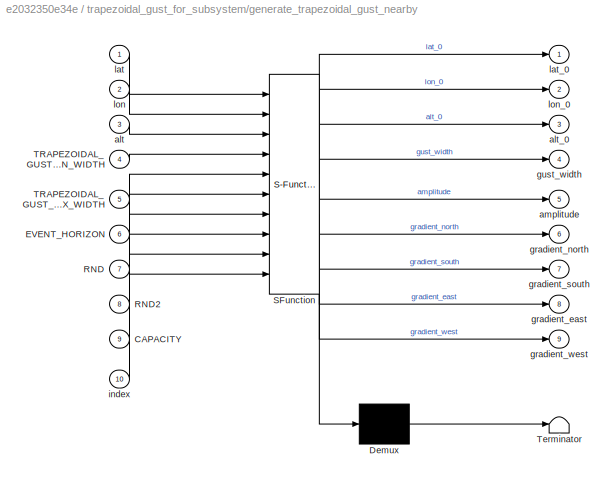
BLOCK [SubSystem] trapezoidal_gust_for_subsystem/generate_trapezoidal_gust_nearby
  ErrorFcn = Stateflow.Translate.translate
  PermitHierarchicalResolution = ExplicitOnly
  Ports = [10, 9]
  RequestExecContextInheritance = off
  SFBlockType = MATLAB Function
  TreatAsAtomicUnit = on
BLOCK [Demux] trapezoidal_gust_for_subsystem/generate_trapezoidal_gust_nearby/ Demux 
  Outputs = 1
  Ports = [1, 1]
BLOCK [S-Function] trapezoidal_gust_for_subsystem/generate_trapezoidal_gust_nearby/ SFunction 
  EnableBusSupport = on
  FunctionName = sf_sfun
  PortCounts = [10 10]
  Ports = [10, 10]
  SFcnIsStateOwnerBlock = off
  SFunctionDeploymentMode = off
  Tag = Stateflow S-Function 3
BLOCK [Terminator] trapezoidal_gust_for_subsystem/generate_trapezoidal_gust_nearby/ Terminator 
BLOCK [Inport] trapezoidal_gust_for_subsystem/generate_trapezoidal_gust_nearby/CAPACITY
  Port = 9
BLOCK [Inport] trapezoidal_gust_for_subsystem/generate_trapezoidal_gust_nearby/EVENT_HORIZON
  Port = 6
BLOCK [Inport] trapezoidal_gust_for_subsystem/generate_trapezoidal_gust_nearby/RND
  Port = 7
BLOCK [Inport] trapezoidal_gust_for_subsystem/generate_trapezoidal_gust_nearby/RND2
  Port = 8
BLOCK [Inport] trapezoidal_gust_for_subsystem/generate_trapezoidal_gust_nearby/TRAPEZOIDAL_GUST_MAX_WIDTH
  Port = 5
BLOCK [Inport] trapezoidal_gust_for_subsystem/generate_trapezoidal_gust_nearby/TRAPEZOIDAL_GUST_MIN_WIDTH
  Port = 4
BLOCK [Inport] trapezoidal_gust_for_subsystem/generate_trapezoidal_gust_nearby/alt
  Port = 3
BLOCK [Outport] trapezoidal_gust_for_subsystem/generate_trapezoidal_gust_nearby/alt_0
  Port = 3
BLOCK [Outport] trapezoidal_gust_for_subsystem/generate_trapezoidal_gust_nearby/amplitude
  Port = 5
BLOCK [Outport] trapezoidal_gust_for_subsystem/generate_trapezoidal_gust_nearby/gradient_east
  Port = 8
BLOCK [Outport] trapezoidal_gust_for_subsystem/generate_trapezoidal_gust_nearby/gradient_north
  Port = 6
BLOCK [Outport] trapezoidal_gust_for_subsystem/generate_trapezoidal_gust_nearby/gradient_south
  Port = 7
BLOCK [Outport] trapezoidal_gust_for_subsystem/generate_trapezoidal_gust_nearby/gradient_west
  Port = 9
BLOCK [Outport] trapezoidal_gust_for_subsystem/generate_trapezoidal_gust_nearby/gust_width
  Port = 4
BLOCK [Inport] trapezoidal_gust_for_subsystem/generate_trapezoidal_gust_nearby/index
  Port = 10
BLOCK [Inport] trapezoidal_gust_for_subsystem/generate_trapezoidal_gust_nearby/lat
BLOCK [Outport] trapezoidal_gust_for_subsystem/generate_trapezoidal_gust_nearby/lat_0
BLOCK [Inport] trapezoidal_gust_for_subsystem/generate_trapezoidal_gust_nearby/lon
  Port = 2
BLOCK [Outport] trapezoidal_gust_for_subsystem/generate_trapezoidal_gust_nearby/lon_0
  Port = 2
BLOCK [ModelReference] trapezoidal_gust_for_subsystem/trapezoidal_gust
  ModelNameDialog = model_trapezoidal_gust.slx
  ModelReferenceVersion = 1.183
  Ports = [12, 1]
BLOCK [Outport] trapezoidal_gust_for_subsystem/w_W_g
  OutDataTypeStr = double
BLOCK [Inport] u
  OutDataTypeStr = double
  Port = 8
BLOCK [Outport] u_W_g
  OutDataTypeStr = double
  SignalName = u_W_g
BLOCK [Inport] v
  OutDataTypeStr = double
  Port = 9
BLOCK [Outport] v_W_g
  OutDataTypeStr = double
  Port = 2
  SignalName = v_W_g
BLOCK [Inport] w
  OutDataTypeStr = double
  Port = 10
BLOCK [Outport] w_W_g
  OutDataTypeStr = double
  Port = 3
  SignalName = w_W_g
NET ALT:1 -> Model:3, cosine_gust_for_subsystem:3, les_for_subsystem:3, sinusoidal_gust_for_subsystem:3, trapezoidal_gust_for_subsystem:3
LINE Bus to Vector:1 -> Quaternions to Rotation Angles:1
LINE Constant1:1 -> Sum of Elements:1
LINE Constant2:1 -> Sum of Elements1:1
LINE Constant3:1 -> Sum of Elements2:1
NET Constant:1 -> p_w:1, q_w:1, r_w:1
LINE Demux1:1 -> Scope9:1
LINE Demux1:2 -> Scope5:1
LINE Demux1:3 -> Scope6:1
LINE Demux1:4 -> Scope7:1
LINE Demux1:5 -> Scope8:1
LINE Demux2:1 -> Scope14:1
LINE Demux2:2 -> Scope10:1
LINE Demux2:3 -> Scope11:1
LINE Demux2:4 -> Scope12:1
LINE Demux2:5 -> Scope13:1
LINE Demux3:1 -> Scope19:1
LINE Demux3:2 -> Scope15:1
LINE Demux3:3 -> Scope16:1
LINE Demux3:4 -> Scope17:1
LINE Demux3:5 -> Scope18:1
LINE Demux4:1 -> Scope24:1
LINE Demux4:2 -> Scope20:1
LINE Demux4:3 -> Scope21:1
LINE Demux4:4 -> Scope22:1
LINE Demux4:5 -> Scope23:1
LINE Demux5:1 -> Scope29:1
LINE Demux5:2 -> Scope25:1
LINE Demux5:3 -> Scope26:1
LINE Demux5:4 -> Scope27:1
LINE Demux5:5 -> Scope28:1
LINE Demux:1 -> Scope:1
LINE Demux:2 -> Scope1:1
LINE Demux:3 -> Scope2:1
LINE Demux:4 -> Scope3:1
LINE Demux:5 -> Scope4:1
NET LAT:1 -> Model:1, cosine_gust_for_subsystem:1, les_for_subsystem:1, sinusoidal_gust_for_subsystem:1, trapezoidal_gust_for_subsystem:1
NET LON:1 -> Model:2, cosine_gust_for_subsystem:2, les_for_subsystem:2, sinusoidal_gust_for_subsystem:2, trapezoidal_gust_for_subsystem:2
LINE Subsystem/Sqrt:1 -> Subsystem/mag:1
LINE Subsystem/Square1:1 -> Subsystem/Sum of Elements:2
LINE Subsystem/Square2:1 -> Subsystem/Sum of Elements:3
LINE Subsystem/Square:1 -> Subsystem/Sum of Elements:1
LINE Subsystem/Sum of Elements:1 -> Subsystem/Sqrt:1
LINE Subsystem/u:1 -> Subsystem/Square:1
LINE Subsystem/v:1 -> Subsystem/Square1:1
LINE Subsystem/w:1 -> Subsystem/Square2:1
LINE Subsystem:1 -> Terminator7:1
LINE Sum of Elements1:1 -> v_W_g:1
LINE Sum of Elements2:1 -> w_W_g:1
LINE Sum of Elements3:1 -> Sum of Elements2:2
LINE Sum of Elements4:1 -> Sum of Elements2:5
LINE Sum of Elements5:1 -> Sum of Elements:2
LINE Sum of Elements6:1 -> Sum of Elements1:2
LINE Sum of Elements7:1 -> Sum of Elements2:4
LINE Sum of Elements8:1 -> Sum of Elements2:3
LINE Sum of Elements:1 -> u_W_g:1
NET cosine_gust_for_subsystem/ALT:1 -> cosine_gust_for_subsystem/Model:3, cosine_gust_for_subsystem/generate_cosine_gust_nearby:3
LINE cosine_gust_for_subsystem/Assignment2:1 -> cosine_gust_for_subsystem/w_W_g:1
LINE cosine_gust_for_subsystem/Constant1:1 -> cosine_gust_for_subsystem/generate_cosine_gust_nearby:9
LINE cosine_gust_for_subsystem/Constant2:1 -> cosine_gust_for_subsystem/generate_cosine_gust_nearby:4
LINE cosine_gust_for_subsystem/Constant3:1 -> cosine_gust_for_subsystem/generate_cosine_gust_nearby:6
LINE cosine_gust_for_subsystem/Constant4:1 -> cosine_gust_for_subsystem/generate_cosine_gust_nearby:5
LINE cosine_gust_for_subsystem/Constant:1 -> cosine_gust_for_subsystem/Assignment2:1
NET cosine_gust_for_subsystem/For Iterator:1 -> cosine_gust_for_subsystem/Assignment2:3, cosine_gust_for_subsystem/generate_cosine_gust_nearby:10
NET cosine_gust_for_subsystem/LAT:1 -> cosine_gust_for_subsystem/Model:1, cosine_gust_for_subsystem/generate_cosine_gust_nearby:1
NET cosine_gust_for_subsystem/LON:1 -> cosine_gust_for_subsystem/Model:2, cosine_gust_for_subsystem/generate_cosine_gust_nearby:2
LINE cosine_gust_for_subsystem/Model:1 -> cosine_gust_for_subsystem/Assignment2:2
LINE cosine_gust_for_subsystem/RND2:1 -> cosine_gust_for_subsystem/generate_cosine_gust_nearby:8
LINE cosine_gust_for_subsystem/RND:1 -> cosine_gust_for_subsystem/generate_cosine_gust_nearby:7
LINE cosine_gust_for_subsystem/generate_cosine_gust_nearby:1 -> cosine_gust_for_subsystem/Model:4
LINE cosine_gust_for_subsystem/generate_cosine_gust_nearby:2 -> cosine_gust_for_subsystem/Model:5
LINE cosine_gust_for_subsystem/generate_cosine_gust_nearby:3 -> cosine_gust_for_subsystem/Model:6
LINE cosine_gust_for_subsystem/generate_cosine_gust_nearby:4 -> cosine_gust_for_subsystem/Model:7
LINE cosine_gust_for_subsystem/generate_cosine_gust_nearby:5 -> cosine_gust_for_subsystem/Model:8
NET cosine_gust_for_subsystem:1 -> Demux5:1, Sum of Elements8:1
NET les_for_subsystem/ALT:1 -> les_for_subsystem/Model:3, les_for_subsystem/generate_les_gust_nearby:3
LINE les_for_subsystem/Assignment1:1 -> les_for_subsystem/u_W_g:1
LINE les_for_subsystem/Assignment2:1 -> les_for_subsystem/w_W_g:1
LINE les_for_subsystem/Assignment:1 -> les_for_subsystem/v_W_g:1
LINE les_for_subsystem/Constant1:1 -> les_for_subsystem/generate_les_gust_nearby:9
LINE les_for_subsystem/Constant2:1 -> les_for_subsystem/generate_les_gust_nearby:4
LINE les_for_subsystem/Constant3:1 -> les_for_subsystem/generate_les_gust_nearby:6
LINE les_for_subsystem/Constant4:1 -> les_for_subsystem/generate_les_gust_nearby:5
NET les_for_subsystem/Constant:1 -> les_for_subsystem/Assignment1:1, les_for_subsystem/Assignment2:1, les_for_subsystem/Assignment:1
NET les_for_subsystem/For Iterator:1 -> les_for_subsystem/Assignment1:3, les_for_subsystem/Assignment2:3, les_for_subsystem/Assignment:3, les_for_subsystem/generate_les_gust_nearby:10
NET les_for_subsystem/LAT:1 -> les_for_subsystem/Model:1, les_for_subsystem/generate_les_gust_nearby:1
NET les_for_subsystem/LON:1 -> les_for_subsystem/Model:2, les_for_subsystem/generate_les_gust_nearby:2
LINE les_for_subsystem/Model:1 -> les_for_subsystem/Assignment1:2
LINE les_for_subsystem/Model:2 -> les_for_subsystem/Assignment:2
LINE les_for_subsystem/Model:3 -> les_for_subsystem/Assignment2:2
LINE les_for_subsystem/RND2:1 -> les_for_subsystem/generate_les_gust_nearby:8
LINE les_for_subsystem/RND:1 -> les_for_subsystem/generate_les_gust_nearby:7
LINE les_for_subsystem/generate_les_gust_nearby:1 -> les_for_subsystem/Model:4
LINE les_for_subsystem/generate_les_gust_nearby:2 -> les_for_subsystem/Model:5
LINE les_for_subsystem/generate_les_gust_nearby:3 -> les_for_subsystem/Model:6
LINE les_for_subsystem/generate_les_gust_nearby:4 -> les_for_subsystem/Model:7
LINE les_for_subsystem/generate_les_gust_nearby:5 -> les_for_subsystem/Model:8
LINE les_for_subsystem/generate_les_gust_nearby:6 -> les_for_subsystem/Model:9
LINE les_for_subsystem/generate_les_gust_nearby:7 -> les_for_subsystem/Model:10
LINE les_for_subsystem/generate_les_gust_nearby:8 -> les_for_subsystem/Model:11
NET les_for_subsystem:1 -> Demux2:1, Sum of Elements5:1
NET les_for_subsystem:2 -> Demux3:1, Sum of Elements6:1
NET les_for_subsystem:3 -> Demux4:1, Sum of Elements7:1
LINE p_g:1 -> Terminator4:1
LINE q0:1 -> Terminator:1
LINE q1:1 -> Terminator1:1
LINE q2:1 -> Terminator2:1
LINE q3:1 -> Terminator3:1
LINE q_g:1 -> Terminator5:1
LINE r_g:1 -> Terminator6:1
NET sinusoidal_gust_for_subsystem/ALT:1 -> sinusoidal_gust_for_subsystem/generate_sinusoidal_gust_nearby:3, sinusoidal_gust_for_subsystem/sinusoidal_gust:3
LINE sinusoidal_gust_for_subsystem/Assignment:1 -> sinusoidal_gust_for_subsystem/w_W_g:1
LINE sinusoidal_gust_for_subsystem/Constant1:1 -> sinusoidal_gust_for_subsystem/generate_sinusoidal_gust_nearby:9
LINE sinusoidal_gust_for_subsystem/Constant2:1 -> sinusoidal_gust_for_subsystem/generate_sinusoidal_gust_nearby:4
LINE sinusoidal_gust_for_subsystem/Constant3:1 -> sinusoidal_gust_for_subsystem/generate_sinusoidal_gust_nearby:6
LINE sinusoidal_gust_for_subsystem/Constant4:1 -> sinusoidal_gust_for_subsystem/generate_sinusoidal_gust_nearby:5
LINE sinusoidal_gust_for_subsystem/Constant:1 -> sinusoidal_gust_for_subsystem/Assignment:1
NET sinusoidal_gust_for_subsystem/For Iterator:1 -> sinusoidal_gust_for_subsystem/Assignment:3, sinusoidal_gust_for_subsystem/generate_sinusoidal_gust_nearby:10
NET sinusoidal_gust_for_subsystem/LAT:1 -> sinusoidal_gust_for_subsystem/generate_sinusoidal_gust_nearby:1, sinusoidal_gust_for_subsystem/sinusoidal_gust:1
NET sinusoidal_gust_for_subsystem/LON:1 -> sinusoidal_gust_for_subsystem/generate_sinusoidal_gust_nearby:2, sinusoidal_gust_for_subsystem/sinusoidal_gust:2
LINE sinusoidal_gust_for_subsystem/RND2:1 -> sinusoidal_gust_for_subsystem/generate_sinusoidal_gust_nearby:8
LINE sinusoidal_gust_for_subsystem/RND:1 -> sinusoidal_gust_for_subsystem/generate_sinusoidal_gust_nearby:7
LINE sinusoidal_gust_for_subsystem/generate_sinusoidal_gust_nearby:1 -> sinusoidal_gust_for_subsystem/sinusoidal_gust:4
LINE sinusoidal_gust_for_subsystem/generate_sinusoidal_gust_nearby:2 -> sinusoidal_gust_for_subsystem/sinusoidal_gust:5
LINE sinusoidal_gust_for_subsystem/generate_sinusoidal_gust_nearby:3 -> sinusoidal_gust_for_subsystem/sinusoidal_gust:6
LINE sinusoidal_gust_for_subsystem/generate_sinusoidal_gust_nearby:4 -> sinusoidal_gust_for_subsystem/sinusoidal_gust:7
LINE sinusoidal_gust_for_subsystem/generate_sinusoidal_gust_nearby:5 -> sinusoidal_gust_for_subsystem/sinusoidal_gust:8
LINE sinusoidal_gust_for_subsystem/sinusoidal_gust:1 -> sinusoidal_gust_for_subsystem/Assignment:2
NET sinusoidal_gust_for_subsystem:1 -> Demux1:1, Sum of Elements4:1
NET trapezoidal_gust_for_subsystem/ALT:1 -> trapezoidal_gust_for_subsystem/generate_trapezoidal_gust_nearby:3, trapezoidal_gust_for_subsystem/trapezoidal_gust:3
LINE trapezoidal_gust_for_subsystem/Assignment:1 -> trapezoidal_gust_for_subsystem/w_W_g:1
LINE trapezoidal_gust_for_subsystem/Constant1:1 -> trapezoidal_gust_for_subsystem/generate_trapezoidal_gust_nearby:9
LINE trapezoidal_gust_for_subsystem/Constant2:1 -> trapezoidal_gust_for_subsystem/generate_trapezoidal_gust_nearby:4
LINE trapezoidal_gust_for_subsystem/Constant3:1 -> trapezoidal_gust_for_subsystem/generate_trapezoidal_gust_nearby:6
LINE trapezoidal_gust_for_subsystem/Constant4:1 -> trapezoidal_gust_for_subsystem/generate_trapezoidal_gust_nearby:5
LINE trapezoidal_gust_for_subsystem/Constant:1 -> trapezoidal_gust_for_subsystem/Assignment:1
NET trapezoidal_gust_for_subsystem/For Iterator:1 -> trapezoidal_gust_for_subsystem/Assignment:3, trapezoidal_gust_for_subsystem/generate_trapezoidal_gust_nearby:10
NET trapezoidal_gust_for_subsystem/LAT:1 -> trapezoidal_gust_for_subsystem/generate_trapezoidal_gust_nearby:1, trapezoidal_gust_for_subsystem/trapezoidal_gust:1
NET trapezoidal_gust_for_subsystem/LON:1 -> trapezoidal_gust_for_subsystem/generate_trapezoidal_gust_nearby:2, trapezoidal_gust_for_subsystem/trapezoidal_gust:2
LINE trapezoidal_gust_for_subsystem/RND2:1 -> trapezoidal_gust_for_subsystem/generate_trapezoidal_gust_nearby:8
LINE trapezoidal_gust_for_subsystem/RND:1 -> trapezoidal_gust_for_subsystem/generate_trapezoidal_gust_nearby:7
LINE trapezoidal_gust_for_subsystem/generate_trapezoidal_gust_nearby:1 -> trapezoidal_gust_for_subsystem/trapezoidal_gust:4
LINE trapezoidal_gust_for_subsystem/generate_trapezoidal_gust_nearby:2 -> trapezoidal_gust_for_subsystem/trapezoidal_gust:5
LINE trapezoidal_gust_for_subsystem/generate_trapezoidal_gust_nearby:3 -> trapezoidal_gust_for_subsystem/trapezoidal_gust:6
LINE trapezoidal_gust_for_subsystem/generate_trapezoidal_gust_nearby:4 -> trapezoidal_gust_for_subsystem/trapezoidal_gust:7
LINE trapezoidal_gust_for_subsystem/generate_trapezoidal_gust_nearby:5 -> trapezoidal_gust_for_subsystem/trapezoidal_gust:8
LINE trapezoidal_gust_for_subsystem/generate_trapezoidal_gust_nearby:6 -> trapezoidal_gust_for_subsystem/trapezoidal_gust:9
LINE trapezoidal_gust_for_subsystem/generate_trapezoidal_gust_nearby:7 -> trapezoidal_gust_for_subsystem/trapezoidal_gust:10
LINE trapezoidal_gust_for_subsystem/generate_trapezoidal_gust_nearby:8 -> trapezoidal_gust_for_subsystem/trapezoidal_gust:11
LINE trapezoidal_gust_for_subsystem/generate_trapezoidal_gust_nearby:9 -> trapezoidal_gust_for_subsystem/trapezoidal_gust:12
LINE trapezoidal_gust_for_subsystem/trapezoidal_gust:1 -> trapezoidal_gust_for_subsystem/Assignment:2
NET trapezoidal_gust_for_subsystem:1 -> Demux:1, Sum of Elements3:1
LINE u:1 -> Subsystem:1
LINE v:1 -> Subsystem:2
LINE w:1 -> Subsystem:3
note: NET lines group one-source signal fan-out (src -> all destinations, sorted); 1:1 wires keep LINE
CHART les_for_subsystem/generate_les_gust_nearby states=1 transitions=1
  STATE_LABEL 'eML_blk_kernel()'
  STATE_LABEL 'SCRIPT:\nfunction [ ...\n    lat_0, lon_0, alt_0, ...\n    gust_width, amplitude_u, amplitude_v, amplitude_w, ...\n    gust_class] = generate_les_gust_nearby( ...\n    lat, lon, alt, ...\n    LES_GUST_MIN_WIDTH, LES_GUST_MAX_WIDTH, ...\n    EVENT_HORIZON, RND, RND2, CAPACITY, index)\n    % Input:\n    % [lat_0] = rad\n    % [lon_0] = rad\n    % [alt_0] = m\n    % [lat] = rad\n    % [lon] = rad\n    % [alt] = m\n...<+3608ch>'
CHART cosine_gust_for_subsystem/generate_cosine_gust_nearby states=1 transitions=1
  STATE_LABEL 'eML_blk_kernel()'
  STATE_LABEL 'SCRIPT:\nfunction [ ...\n    lat_0, lon_0, alt_0, ...\n    gust_width, amplitude] = generate_cosine_gust_nearby( ...\n    lat, lon, alt, ...\n    COSINE_GUST_MIN_WIDTH, COSINE_GUST_MAX_WIDTH, ...\n    EVENT_HORIZON, RND, RND2, CAPACITY, index)\n    % Input:\n    % [lat_0] = rad\n    % [lon_0] = rad\n    % [alt_0] = m\n    % [lat] = rad\n    % [lon] = rad\n    % [alt] = m\n    % [COSINE_GUST_MIN_WIDTH] = m\n    %...<+3292ch>'
CHART trapezoidal_gust_for_subsystem/generate_trapezoidal_gust_nearby states=1 transitions=1
  STATE_LABEL 'eML_blk_kernel()'
  STATE_LABEL 'SCRIPT:\nfunction [ ...\n    lat_0, lon_0, alt_0, ...\n    gust_width, amplitude, ...\n    gradient_north, gradient_south, gradient_east, gradient_west] = generate_trapezoidal_gust_nearby( ...\n    lat, lon, alt, ...\n    TRAPEZOIDAL_GUST_MIN_WIDTH, TRAPEZOIDAL_GUST_MAX_WIDTH, ...\n    EVENT_HORIZON, RND, RND2, CAPACITY, index)\n    % Input:\n    % [lat_0] = rad\n    % [lon_0] = rad\n    % [alt_0] = m\n    % ...<+3608ch>'
CHART sinusoidal_gust_for_subsystem/generate_sinusoidal_gust_nearby states=1 transitions=1
  STATE_LABEL 'eML_blk_kernel()'
  STATE_LABEL 'SCRIPT:\nfunction [ ...\n    lat_0, lon_0, alt_0, ...\n    gust_width, amplitude] = generate_sinusoidal_gust_nearby( ...\n    lat, lon, alt, ...\n    SINUSOIDAL_GUST_MIN_WIDTH, SINUSOIDAL_GUST_MAX_WIDTH, ...\n    EVENT_HORIZON, RND, RND2, CAPACITY, index)\n    % Input:\n    % [lat_0] = rad\n    % [lon_0] = rad\n    % [alt_0] = m\n    % [lat] = rad\n    % [lon] = rad\n    % [alt] = m\n    % [SINUSOIDAL_GUST_MIN_...<+3608ch>'
CHART  states=0 transitions=0
CHART  states=0 transitions=0
CHART  states=0 transitions=0
CHART  states=0 transitions=0
